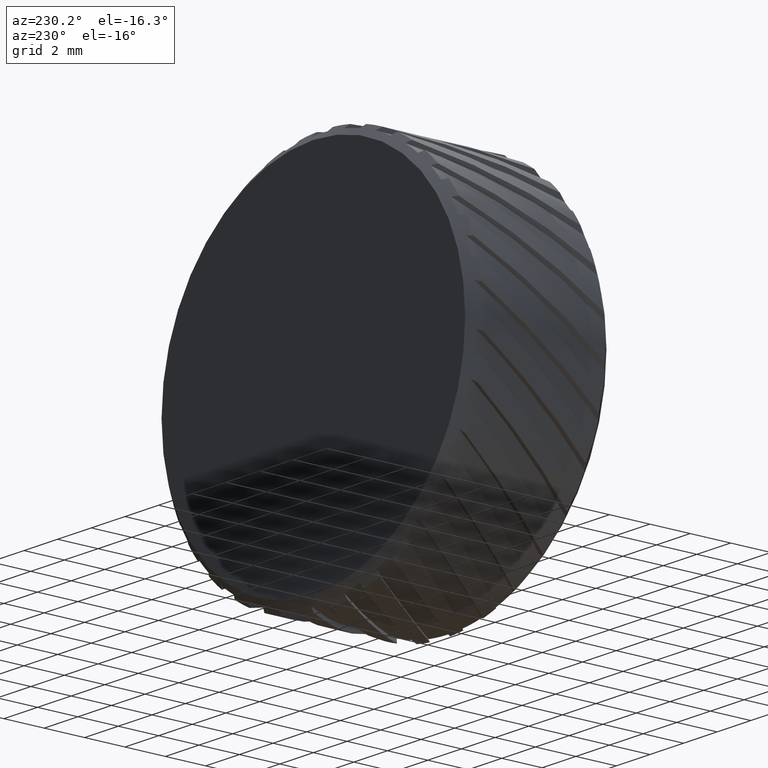
[diagram: clean part render]
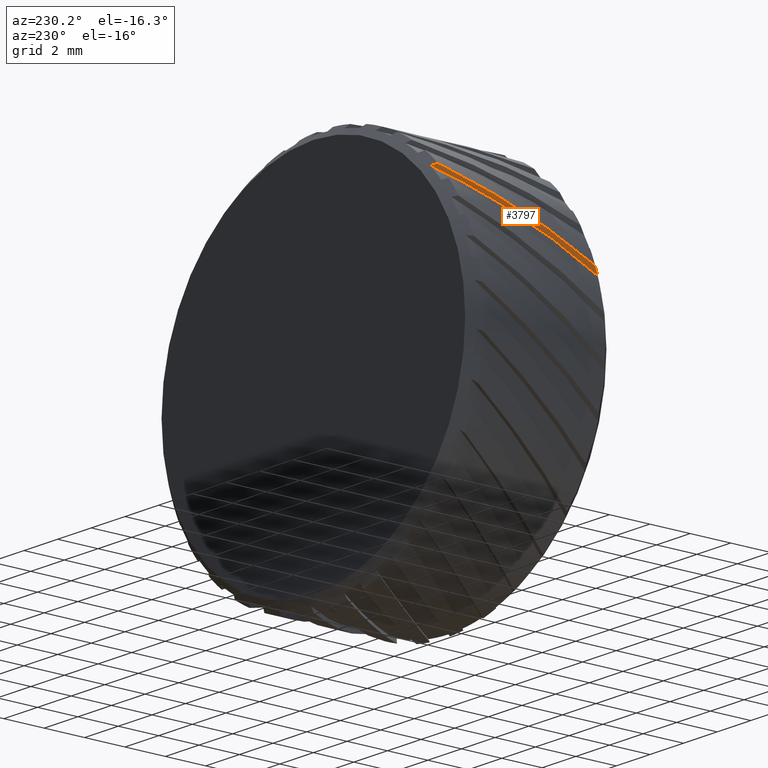
[diagram: same view with one face highlighted and labeled with its STEP entity id]
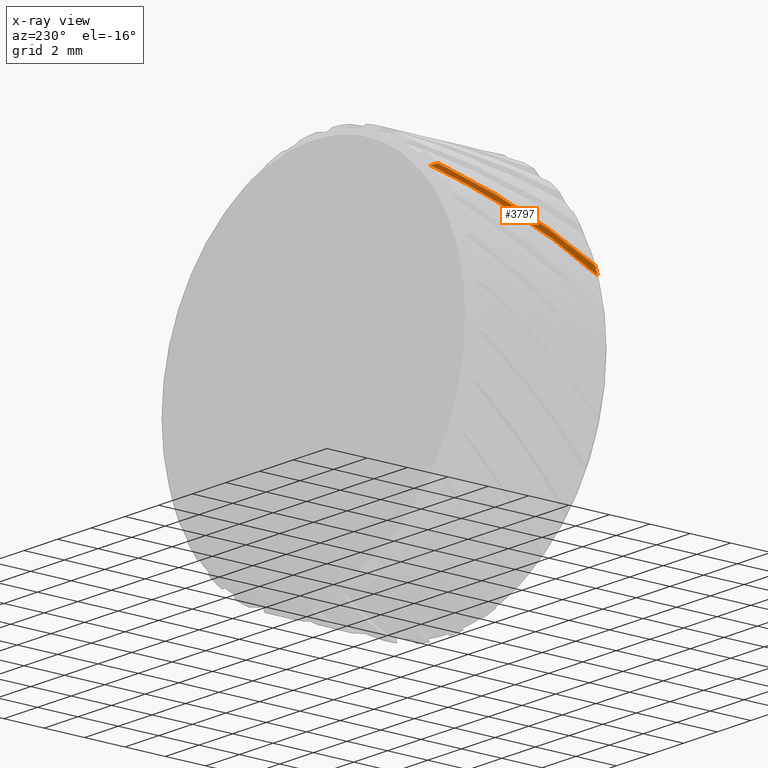
[diagram: x-ray of the same camera — body ghosted, the highlighted face saturated]
A machine part, auxiliary view. The second image highlights one B-rep face of the part: STEP entity #3797.
The next image is the same camera in x-ray: the body ghosted, the highlighted face saturated — about 0% of this face is hidden behind the body in this view.
In plain terms, the highlighted planar face has unit normal (0.6862, -0.5297, 0.4985).
Its self-contained STEP definition (entity closure, byte-faithful):
#74 = PLANE ( 'NONE',  #2800 ) ;
#184 = CARTESIAN_POINT ( 'NONE',  ( -6.805998259135172600, -6.830884482231916800, 6.663633595618018800 ) ) ;
#334 = ORIENTED_EDGE ( 'NONE', *, *, #558, .T. ) ;
#448 = CARTESIAN_POINT ( 'NONE',  ( -6.736644836183077500, -6.764153794154498900, 6.639083847239305700 ) ) ;
#469 =( BOUNDED_CURVE ( )  B_SPLINE_CURVE ( 3, ( #2378, #4604, #1328, #4670 ),
 .UNSPECIFIED., .F., .T. ) 
 B_SPLINE_CURVE_WITH_KNOTS ( ( 4, 4 ),
 ( 4.086635441593596600, 4.554688600638674400 ),
 .UNSPECIFIED. ) 
 CURVE ( )  GEOMETRIC_REPRESENTATION_ITEM ( )  RATIONAL_B_SPLINE_CURVE ( ( 1.000000000000000000, 0.9818270231168571000, 0.9818270231168571000, 1.000000000000000000 ) ) 
 REPRESENTATION_ITEM ( '' )  );
#558 = EDGE_CURVE ( 'NONE', #4259, #4362, #4209, .T. ) ;
#583 = VERTEX_POINT ( 'NONE', #184 ) ;
#796 = CARTESIAN_POINT ( 'NONE',  ( -8.489260351268324500, -11.01875353153871000, 4.530476960960973200 ) ) ;
#1096 = CARTESIAN_POINT ( 'NONE',  ( 6.148183918616431300, -3.199738791282192200, -7.307866466789526800 ) ) ;
#1328 = CARTESIAN_POINT ( 'NONE',  ( -7.635466196751949000, -8.952610133768862600, 5.550783752456828400 ) ) ;
#1435 = VERTEX_POINT ( 'NONE', #1627 ) ;
#1512 = CARTESIAN_POINT ( 'NONE',  ( -7.761946351764143200, -8.988001667723397100, 5.687262226919893100 ) ) ;
#1627 = CARTESIAN_POINT ( 'NONE',  ( -6.597862527763795400, -6.630884482231914000, 6.589676400608036400 ) ) ;
#1830 = DIRECTION ( 'NONE',  ( 0.4285669291996995200, 0.8481614247524721400, 0.3113721001602362500 ) ) ;
#2323 = B_SPLINE_CURVE_WITH_KNOTS ( 'NONE', 3,
 ( #4124, #448, #4598, #2327 ),
 .UNSPECIFIED., .F., .F.,
 ( 4, 4 ),
 ( 2.976890748639450100E-007, 0.0002982738784838293500 ),
 .UNSPECIFIED. ) ;
#2327 = CARTESIAN_POINT ( 'NONE',  ( -6.597862527763795400, -6.630884482231914000, 6.589676400608036400 ) ) ;
#2378 = CARTESIAN_POINT ( 'NONE',  ( -8.861181610148921800, -13.03088448223190600, 2.904321860944250900 ) ) ;
#2704 = EDGE_CURVE ( 'NONE', #583, #4362, #2965, .T. ) ;
#2800 = AXIS2_PLACEMENT_3D ( 'NONE', #1096, #4054, #1830 ) ;
#2965 =( BOUNDED_CURVE ( )  B_SPLINE_CURVE ( 3, ( #2978, #1512, #796, #3349 ),
 .UNSPECIFIED., .F., .T. ) 
 B_SPLINE_CURVE_WITH_KNOTS ( ( 4, 4 ),
 ( 1.738444872137412400, 2.165538831819180800 ),
 .UNSPECIFIED. ) 
 CURVE ( )  GEOMETRIC_REPRESENTATION_ITEM ( )  RATIONAL_B_SPLINE_CURVE ( ( 1.000000000000000000, 0.9848569072552557600, 0.9848569072552557600, 1.000000000000000000 ) ) 
 REPRESENTATION_ITEM ( '' )  );
#2978 = CARTESIAN_POINT ( 'NONE',  ( -6.805998259135172600, -6.830884482231916800, 6.663633595618018800 ) ) ;
#3192 = EDGE_LOOP ( 'NONE', ( #3401, #3460, #334, #4645 ) ) ;
#3349 = CARTESIAN_POINT ( 'NONE',  ( -8.954898907600583200, -12.83088448223190700, 3.245829717445764700 ) ) ;
#3401 = ORIENTED_EDGE ( 'NONE', *, *, #4254, .T. ) ;
#3460 = ORIENTED_EDGE ( 'NONE', *, *, #3993, .F. ) ;
#3498 = CARTESIAN_POINT ( 'NONE',  ( -8.861181610148921800, -13.03088448223190600, 2.904321860944250900 ) ) ;
#3516 = CARTESIAN_POINT ( 'NONE',  ( -8.893163563459348000, -12.96496842722939200, 3.018382675216319200 ) ) ;
#3797 = ADVANCED_FACE ( 'NONE', ( #4711 ), #74, .F. ) ;
#3993 = EDGE_CURVE ( 'NONE', #4259, #1435, #469, .T. ) ;
#4054 = DIRECTION ( 'NONE',  ( 0.6861770065980241600, -0.5297378573991635700, 0.4985367770328670300 ) ) ;
#4124 = CARTESIAN_POINT ( 'NONE',  ( -6.805998259135172600, -6.830884482231916800, 6.663633595618018800 ) ) ;
#4209 = B_SPLINE_CURVE_WITH_KNOTS ( 'NONE', 3,
 ( #3498, #3516, #4239, #4671 ),
 .UNSPECIFIED., .F., .F.,
 ( 4, 4 ),
 ( 0.0004226730104152883500, 0.0008293654366192121200 ),
 .UNSPECIFIED. ) ;
#4239 = CARTESIAN_POINT ( 'NONE',  ( -8.924387503903837200, -12.89828644355677800, 3.132214038840091400 ) ) ;
#4254 = EDGE_CURVE ( 'NONE', #583, #1435, #2323, .T. ) ;
#4259 = VERTEX_POINT ( 'NONE', #4532 ) ;
#4362 = VERTEX_POINT ( 'NONE', #4650 ) ;
#4532 = CARTESIAN_POINT ( 'NONE',  ( -8.861181610148921800, -13.03088448223190600, 2.904321860944250900 ) ) ;
#4598 = CARTESIAN_POINT ( 'NONE',  ( -6.667266596683430400, -6.697485881604820600, 6.614433237459400600 ) ) ;
#4604 = CARTESIAN_POINT ( 'NONE',  ( -8.403870076829896600, -11.12543007364071300, 4.299594404132027300 ) ) ;
#4645 = ORIENTED_EDGE ( 'NONE', *, *, #2704, .F. ) ;
#4650 = CARTESIAN_POINT ( 'NONE',  ( -8.954898907600583200, -12.83088448223190700, 3.245829717445764700 ) ) ;
#4670 = CARTESIAN_POINT ( 'NONE',  ( -6.597862527763795400, -6.630884482231914000, 6.589676400608036400 ) ) ;
#4671 = CARTESIAN_POINT ( 'NONE',  ( -8.954898907600583200, -12.83088448223190700, 3.245829717445764700 ) ) ;
#4711 = FACE_OUTER_BOUND ( 'NONE', #3192, .T. ) ;